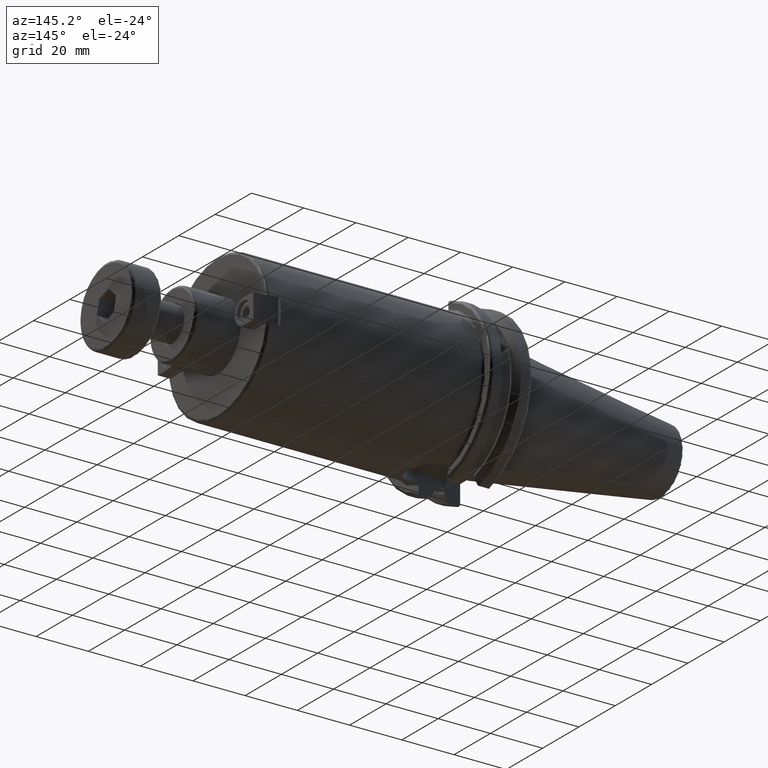
[diagram: clean part render]
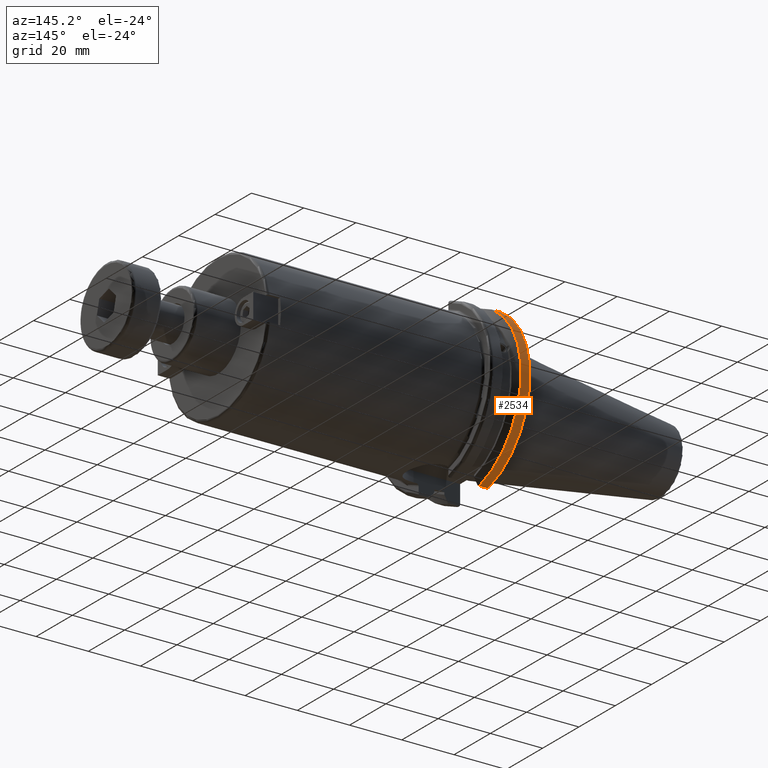
[diagram: same view with one face highlighted and labeled with its STEP entity id]
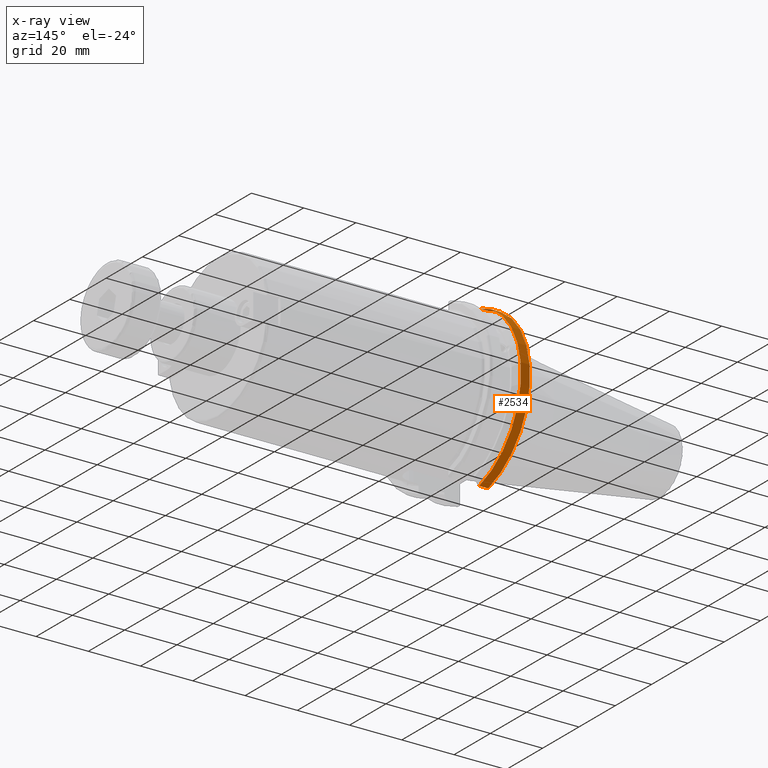
[diagram: x-ray of the same camera — body ghosted, the highlighted face saturated]
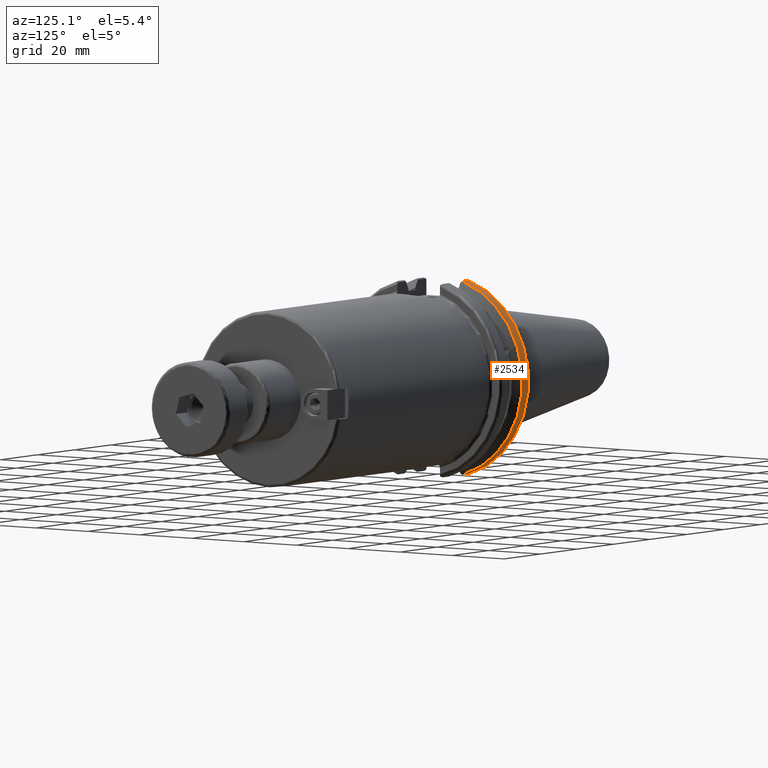
[diagram: same view with one face highlighted and labeled with its STEP entity id]
A machine part, auxiliary view. The second image highlights one B-rep face of the part: STEP entity #2534.
The next image is the same camera in x-ray: the body ghosted, the highlighted face saturated — about 0% of this face is hidden behind the body in this view.
A second angle (auxiliary view) of the same face is appended — the face is thin or edge-on in the first view.
In plain terms, the highlighted cylindrical surface (partial cylindrical patch) has radius 31.75 mm, axis along (1, 0, 0).
Its self-contained STEP definition (entity closure, byte-faithful):
#139=CYLINDRICAL_SURFACE('',#2880,31.75);
#266=CIRCLE('',#2865,31.75);
#273=CIRCLE('',#2881,31.75);
#405=FACE_OUTER_BOUND('',#567,.T.);
#567=EDGE_LOOP('',(#2088,#2089,#2090,#2091));
#736=LINE('',#4666,#900);
#743=LINE('',#4700,#907);
#900=VECTOR('',#3431,10.);
#907=VECTOR('',#3466,10.);
#1175=VERTEX_POINT('',#4639);
#1176=VERTEX_POINT('',#4648);
#1177=VERTEX_POINT('',#4665);
#1184=VERTEX_POINT('',#4699);
#1492=EDGE_CURVE('',#1175,#1176,#266,.T.);
#1495=EDGE_CURVE('',#1176,#1177,#736,.T.);
#1510=EDGE_CURVE('',#1184,#1175,#743,.T.);
#1511=EDGE_CURVE('',#1177,#1184,#273,.T.);
#2088=ORIENTED_EDGE('',*,*,#1492,.F.);
#2089=ORIENTED_EDGE('',*,*,#1510,.F.);
#2090=ORIENTED_EDGE('',*,*,#1511,.F.);
#2091=ORIENTED_EDGE('',*,*,#1495,.F.);
#2534=ADVANCED_FACE('',(#405),#139,.T.);
#2865=AXIS2_PLACEMENT_3D('',#4649,#3427,#3428);
#2880=AXIS2_PLACEMENT_3D('',#4698,#3464,#3465);
#2881=AXIS2_PLACEMENT_3D('',#4701,#3467,#3468);
#3427=DIRECTION('center_axis',(-1.,0.,0.));
#3428=DIRECTION('ref_axis',(0.,1.,1.60812264967664E-16));
#3431=DIRECTION('',(1.,0.,0.));
#3464=DIRECTION('center_axis',(1.,0.,0.));
#3465=DIRECTION('ref_axis',(0.,1.,0.));
#3466=DIRECTION('',(-1.,0.,0.));
#3467=DIRECTION('center_axis',(1.,0.,0.));
#3468=DIRECTION('ref_axis',(0.,0.,-1.));
#4639=CARTESIAN_POINT('',(4.175,8.67204822802685,30.5427254764662));
#4648=CARTESIAN_POINT('',(4.175,8.67204822802685,-30.5427254764662));
#4649=CARTESIAN_POINT('Origin',(4.175,0.,0.));
#4665=CARTESIAN_POINT('',(7.60793323092436,8.67204822802685,-30.5427254764662));
#4666=CARTESIAN_POINT('',(5.39146661546218,8.67204822802685,-30.5427254764662));
#4698=CARTESIAN_POINT('Origin',(5.39146661546218,0.,0.));
#4699=CARTESIAN_POINT('',(7.60793323092436,8.67204822802685,30.5427254764662));
#4700=CARTESIAN_POINT('',(5.39146661546218,8.67204822802685,30.5427254764662));
#4701=CARTESIAN_POINT('Origin',(7.60793323092436,0.,0.));